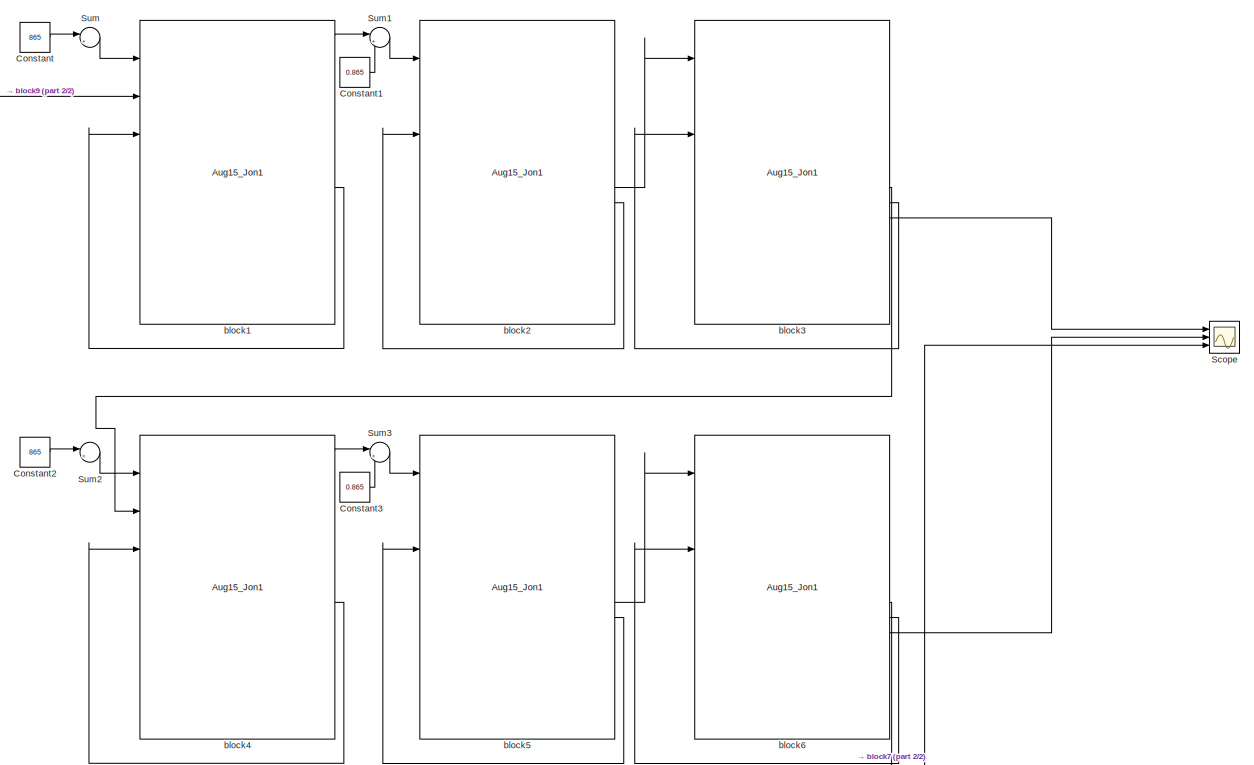
[diagram: root canvas - part 1/2, full width, top band]
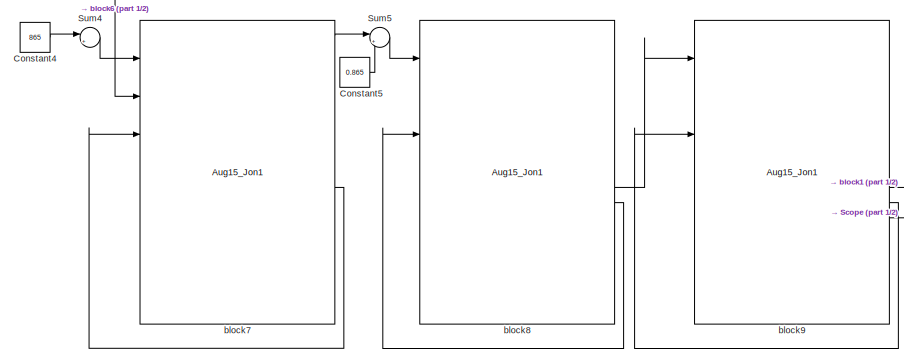
[diagram: root canvas - part 2/2, bottom center region]
MODEL slx_4702ae90b823
KIND model
CONFIG AbsTol = auto
CONFIG EnableMultiTasking = off
CONFIG FixedStep = auto
CONFIG MaxStep = auto
CONFIG MinStep = auto
CONFIG RelTol = 1e-3
CONFIG SampleTimeConstraint = Unconstrained
CONFIG Solver = VariableStepAuto
CONFIG SolverName = VariableStepAuto
CONFIG StartTime = 0.0
CONFIG StopTime = 100.0
BLOCK [Constant] Constant
  Value = 865
BLOCK [Constant] Constant1
  Value = 0.865
BLOCK [Constant] Constant2
  Value = 865
BLOCK [Constant] Constant3
  Value = 0.865
BLOCK [Constant] Constant4
  Value = 865
BLOCK [Constant] Constant5
  Value = 0.865
BLOCK [Scope] Scope
  Floating = off
  NumInputPorts = 3
  Ports = [3]
  ScopeSpecificationString = Simulink.scopes.TimeScopeBlockCfg('CurrentConfiguration', extmgr.ConfigurationSet(extmgr.Configuration('Core','General UI',true),extmgr.Configuration('Core','Source UI',true),extmgr.Configuration('Sources','WiredSimulink',true),extmgr.Configuration('Visuals','Time Domain',true,'SerializedDisplays',{struct('MinYLimReal','-3.54136','MaxYLimReal','31.9722','YLabelReal','','MinYLimMag','0.00000','MaxY...<+1397ch>
BLOCK [Sum] Sum
  IconShape = round
  InputSameDT = off
  Inputs = |++
  OutDataTypeStr = Inherit: Inherit via internal rule
  Ports = [2, 1]
  SaturateOnIntegerOverflow = off
BLOCK [Sum] Sum1
  IconShape = round
  InputSameDT = off
  Inputs = |++
  OutDataTypeStr = Inherit: Inherit via internal rule
  Ports = [2, 1]
  SaturateOnIntegerOverflow = off
BLOCK [Sum] Sum2
  IconShape = round
  InputSameDT = off
  Inputs = |++
  OutDataTypeStr = Inherit: Inherit via internal rule
  Ports = [2, 1]
  SaturateOnIntegerOverflow = off
BLOCK [Sum] Sum3
  IconShape = round
  InputSameDT = off
  Inputs = |++
  OutDataTypeStr = Inherit: Inherit via internal rule
  Ports = [2, 1]
  SaturateOnIntegerOverflow = off
BLOCK [Sum] Sum4
  IconShape = round
  InputSameDT = off
  Inputs = |++
  OutDataTypeStr = Inherit: Inherit via internal rule
  Ports = [2, 1]
  SaturateOnIntegerOverflow = off
BLOCK [Sum] Sum5
  IconShape = round
  InputSameDT = off
  Inputs = |++
  OutDataTypeStr = Inherit: Inherit via internal rule
  Ports = [2, 1]
  SaturateOnIntegerOverflow = off
BLOCK [Reference] block1  REF=Chip_Library/Aug15_Jon1
  Ports = [7, 19]
  SourceBlock = Chip_Library/Aug15_Jon1
BLOCK [Reference] block2  REF=Chip_Library/Aug15_Jon1
  Ports = [7, 19]
  SourceBlock = Chip_Library/Aug15_Jon1
BLOCK [Reference] block3  REF=Chip_Library/Aug15_Jon1
  Ports = [7, 19]
  SourceBlock = Chip_Library/Aug15_Jon1
BLOCK [Reference] block4  REF=Chip_Library/Aug15_Jon1
  Ports = [7, 19]
  SourceBlock = Chip_Library/Aug15_Jon1
BLOCK [Reference] block5  REF=Chip_Library/Aug15_Jon1
  Ports = [7, 19]
  SourceBlock = Chip_Library/Aug15_Jon1
BLOCK [Reference] block6  REF=Chip_Library/Aug15_Jon1
  Ports = [7, 19]
  SourceBlock = Chip_Library/Aug15_Jon1
BLOCK [Reference] block7  REF=Chip_Library/Aug15_Jon1
  Ports = [7, 19]
  SourceBlock = Chip_Library/Aug15_Jon1
BLOCK [Reference] block8  REF=Chip_Library/Aug15_Jon1
  Ports = [7, 19]
  SourceBlock = Chip_Library/Aug15_Jon1
BLOCK [Reference] block9  REF=Chip_Library/Aug15_Jon1
  Ports = [7, 19]
  SourceBlock = Chip_Library/Aug15_Jon1
LINE Constant1:1 -> Sum1:2
LINE Constant2:1 -> Sum2:1
LINE Constant3:1 -> Sum3:2
LINE Constant4:1 -> Sum4:1
LINE Constant5:1 -> Sum5:2
LINE Constant:1 -> Sum:1
LINE Sum1:1 -> block2:1
LINE Sum2:1 -> block4:1
LINE Sum3:1 -> block5:1
LINE Sum4:1 -> block7:1
LINE Sum5:1 -> block8:1
LINE Sum:1 -> block1:1
LINE block1:1 -> Sum1:1
LINE block1:11 -> block1:3
LINE block2:11 -> block3:1
LINE block2:12 -> block2:3
LINE block3:11 -> block4:2
LINE block3:12 -> block3:3
LINE block3:13 -> Scope:1
LINE block4:1 -> Sum3:1
LINE block4:11 -> block4:3
LINE block5:11 -> block6:1
LINE block5:12 -> block5:3
LINE block6:11 -> block7:2
LINE block6:12 -> block6:3
LINE block6:13 -> Scope:2
LINE block7:1 -> Sum5:1
LINE block7:11 -> block7:3
LINE block8:11 -> block9:1
LINE block8:12 -> block8:3
LINE block9:11 -> block1:2
LINE block9:12 -> block9:3
LINE block9:13 -> Scope:3
